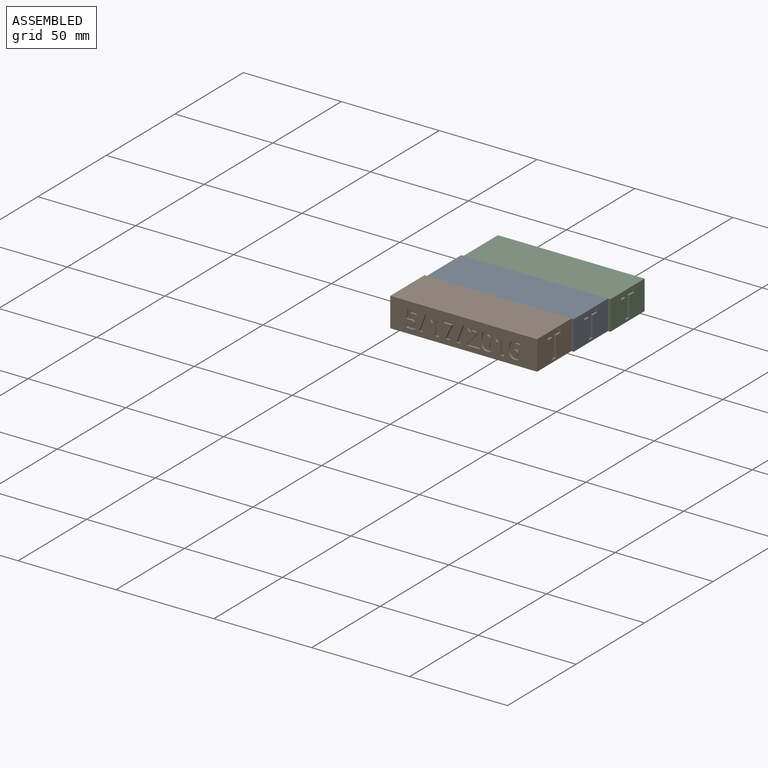
[diagram: assembled view]
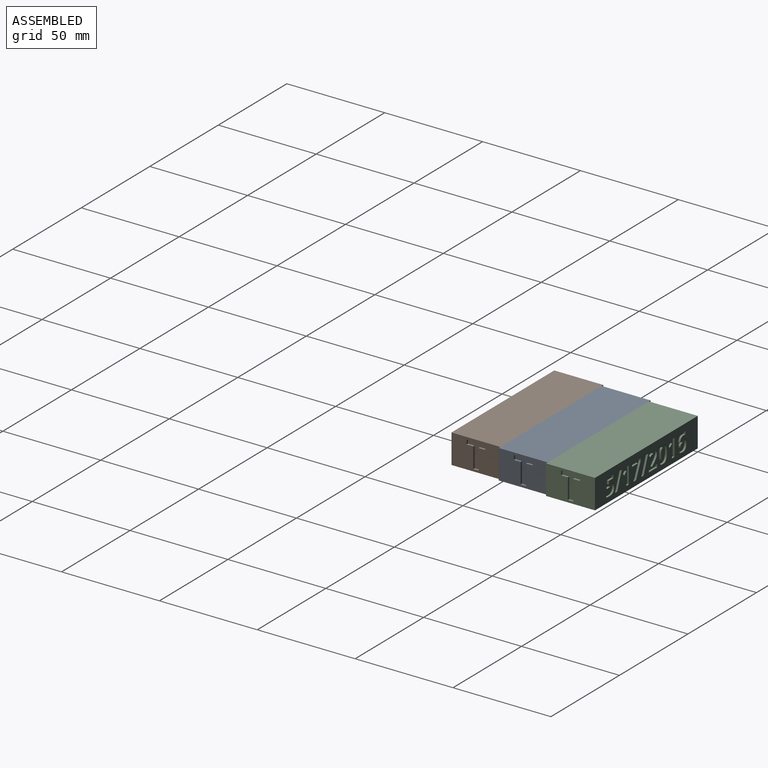
[diagram: assembled view, second angle]
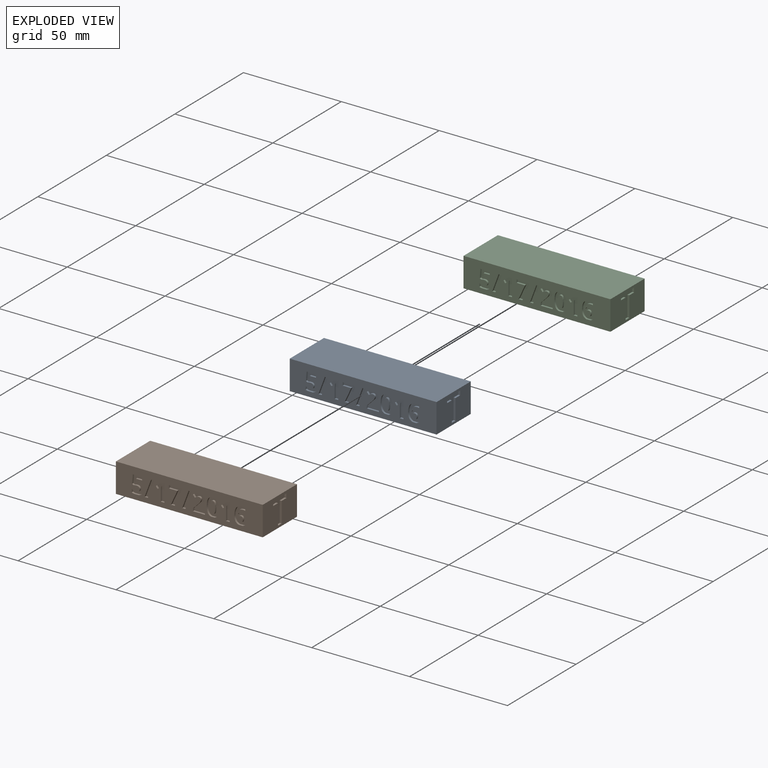
[diagram: exploded view]
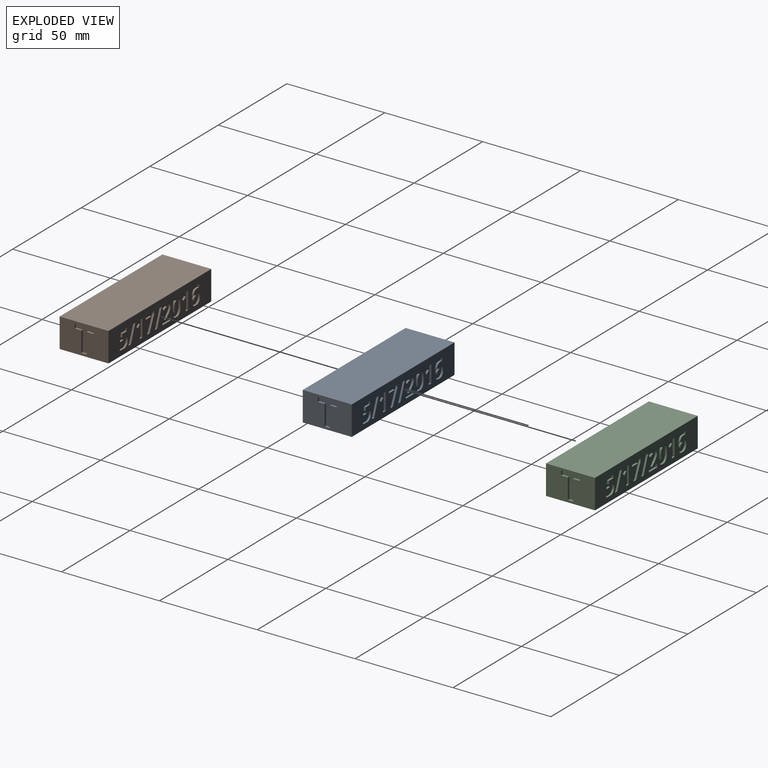
[diagram: exploded view, second angle]
ASSEMBLY  parts=3 mates=2
PART A: 309 faces, bbox 75x25x15 mm
  f0: plane 25x15mm, normal (-1,0,0), area 264.5mm2, adj f1,f2,f4,f5,f280,f281,f282,f283
  f1: plane 75x15mm, normal (0,-1,0), area 886.6mm2, adj f0,f3,f4,f5,f143,f144,f145,f146
  f2: plane 75x15mm, normal (0,1,0), area 886.6mm2, adj f0,f3,f4,f5,f6,f7,f8,f9
  f3: plane 25x15mm, normal (1,0,0), area 325.7mm2, adj f1,f2,f4,f5,f300,f301,f302,f303
  f4: plane 75x25mm, normal (0,0,1), area 1875mm2, adj f0,f1,f2,f3
  f5: plane 75x25mm, normal (0,0,-1), area 1875mm2, adj f0,f1,f2,f3
  f6: plane 5.11x1mm, normal (-1,0,0), area 5.1mm2, adj f2,f7,f15,f16
  f7: plane 1.87x1mm, normal (0,0,1), area 1.9mm2, adj f2,f6,f8,f16
  f8: plane 8.82x1mm, normal (1,0,0), area 8.8mm2, adj f2,f7,f9,f16
  f9: plane 1.53x1mm, normal (0,0,-1), area 1.5mm2, adj f2,f8,f10,f16
  f10: plane 2.84x2.26mm, normal (-0.62,0,-0.78), area 3.6mm2, adj f2,f9,f11,f16
  f11: plane 1.12x1mm, normal (-0.78,0,0.63), area 1.4mm2, adj f2,f10,f12,f16
  f12: plane 1.01x1mm, normal (0.63,0,0.78), area 1.3mm2, adj f2,f11,f13,f16
  f13: extruded ~1x0.65mm, area 0.9mm2, adj f2,f12,f14,f16
  f14: plane 1x0.92mm, normal (-1,0,-0.03), area 0.9mm2, adj f2,f13,f15,f16
  f15: plane 1x0.84mm, normal (-1,0,-0.02), area 0.8mm2, adj f2,f6,f14,f16
  f16: plane 8.82x4.38mm, normal (0,1,0), area 20.1mm2, adj f6,f7,f8,f9,f10,f11,f12,f13
  f17: plane 1.73x1mm, normal (1,0,0.09), area 1.7mm2, adj f2,f18,f37,f38
  f18: plane 3.15x1mm, normal (0,0,1), area 3.1mm2, adj f2,f17,f19,f38
  f19: plane 1.58x1mm, normal (1,0,0), area 1.6mm2, adj f2,f18,f20,f38
  f20: plane 4.79x1mm, normal (0,0,-1), area 4.8mm2, adj f2,f19,f21,f38
  f21: plane 4.5x1mm, normal (-1,0,-0.07), area 4.5mm2, adj f2,f20,f22,f38
  f22: plane 1x0.74mm, normal (-0.47,0,0.88), area 0.8mm2, adj f2,f21,f23,f38
  f23: extruded ~1x0.63mm, area 0.6mm2, adj f2,f22,f24,f38
  f24: extruded ~1x0.71mm, area 0.7mm2, adj f2,f23,f25,f38
  f25: extruded ~1.77x1.33mm, area 2.5mm2, adj f2,f24,f26,f38
  f26: extruded ~1.71x1.4mm, area 2.5mm2, adj f2,f25,f27,f38
  f27: extruded ~1.2x1mm, area 1.2mm2, adj f2,f26,f28,f38
  f28: extruded ~1.11x1mm, area 1.2mm2, adj f2,f27,f29,f38
  f29: plane 1.61x1mm, normal (-1,0,0), area 1.6mm2, adj f2,f28,f30,f38
  f30: extruded ~1.03x1mm, area 1.1mm2, adj f2,f29,f31,f38
  f31: plane 2.55x1mm, normal (0,0,1), area 2.5mm2, adj f2,f30,f32,f38
  f32: extruded ~1.4x1mm, area 1.6mm2, adj f2,f31,f33,f38
  f33: extruded ~2.27x1mm, area 2.5mm2, adj f2,f32,f34,f38
  f34: extruded ~1.97x1mm, area 2.2mm2, adj f2,f33,f35,f38
  f35: extruded ~2.04x1mm, area 2.2mm2, adj f2,f34,f36,f38
  f36: extruded ~1x0.91mm, area 0.9mm2, adj f2,f35,f37,f38
  f37: plane 1x0.21mm, normal (-0.2,0,-0.98), area 0.2mm2, adj f2,f17,f36,f38
  f38: plane 8.86x5.9mm, normal (0,1,0), area 30.5mm2, adj f17,f18,f19,f20,f21,f22,f23,f24
  f39: plane 8.82x3.29mm, normal (-0.94,0,-0.35), area 9.4mm2, adj f2,f40,f42,f43
  f40: plane 1.67x1mm, normal (0,0,1), area 1.7mm2, adj f2,f39,f41,f43
  f41: plane 8.82x3.29mm, normal (0.94,0,0.35), area 9.4mm2, adj f2,f40,f42,f43
  f42: plane 1.67x1mm, normal (0,0,-1), area 1.7mm2, adj f2,f39,f41,f43
  f43: plane 8.82x4.96mm, normal (0,1,0), area 14.7mm2, adj f39,f40,f41,f42
  f44: plane 1.96x1mm, normal (0,0,1), area 2mm2, adj f2,f45,f50,f51
  f45: plane 7.64x3.34mm, normal (0.92,0,0.4), area 8.3mm2, adj f2,f44,f46,f51
  f46: plane 1.17x1mm, normal (1,0,0), area 1.2mm2, adj f2,f45,f47,f51
  f47: plane 6.33x1mm, normal (0,0,-1), area 6.3mm2, adj f2,f46,f48,f51
  f48: plane 1.57x1mm, normal (-1,0,0), area 1.6mm2, adj f2,f47,f49,f51
  f49: plane 4.35x1mm, normal (0,0,1), area 4.4mm2, adj f2,f48,f50,f51
  f50: plane 7.24x3.31mm, normal (-0.91,0,-0.42), area 8mm2, adj f2,f44,f49,f51
  f51: plane 8.81x6.33mm, normal (0,1,0), area 23.5mm2, adj f44,f45,f46,f47,f48,f49,f50
  f52: plane 8.82x3.29mm, normal (-0.94,0,-0.35), area 9.4mm2, adj f2,f53,f55,f56
  f53: plane 1.67x1mm, normal (0,0,1), area 1.7mm2, adj f2,f52,f54,f56
  f54: plane 8.82x3.29mm, normal (0.94,0,0.35), area 9.4mm2, adj f2,f53,f55,f56
  f55: plane 1.67x1mm, normal (0,0,-1), area 1.7mm2, adj f2,f52,f54,f56
  f56: plane 8.82x4.96mm, normal (0,1,0), area 14.7mm2, adj f52,f53,f54,f55
  f57: plane 1.3x1mm, normal (-1,0,0), area 1.3mm2, adj f2,f58,f81,f82
  f58: plane 6.17x1mm, normal (0,0,1), area 6.2mm2, adj f2,f57,f59,f82
  f59: plane 1.57x1mm, normal (1,0,0), area 1.6mm2, adj f2,f58,f60,f82
  f60: plane 3.84x1mm, normal (0,0,-1), area 3.8mm2, adj f2,f59,f61,f82
  f61: plane 1x0.08mm, normal (1,0,0), area 0.1mm2, adj f2,f60,f62,f82
  f62: plane 1.14x1.07mm, normal (0.69,0,0.73), area 1.6mm2, adj f2,f61,f63,f82
  f63: extruded ~1.6x1.58mm, area 2.3mm2, adj f2,f62,f64,f82
  f64: extruded ~1.1x1mm, area 1.3mm2, adj f2,f63,f65,f82
  f65: extruded ~1.14x1mm, area 1.2mm2, adj f2,f64,f66,f82
  f66: extruded ~1.24x1mm, area 1.3mm2, adj f2,f65,f67,f82
  f67: extruded ~1x0.98mm, area 1.3mm2, adj f2,f66,f68,f82
  f68: extruded ~1x0.82mm, area 0.9mm2, adj f2,f67,f69,f82
  f69: plane 1.39x1mm, normal (0,0,-1), area 1.4mm2, adj f2,f68,f70,f82
  f70: extruded ~1x0.38mm, area 0.4mm2, adj f2,f69,f71,f82
  f71: extruded ~1x0.94mm, area 1mm2, adj f2,f70,f72,f82
  f72: extruded ~1.08x1mm, area 1.3mm2, adj f2,f71,f73,f82
  f73: plane 1.2x1.01mm, normal (-0.76,0,0.65), area 1.6mm2, adj f2,f72,f74,f82
  f74: extruded ~1.01x1mm, area 1.2mm2, adj f2,f73,f75,f82
  f75: extruded ~1x0.99mm, area 1mm2, adj f2,f74,f76,f82
  f76: extruded ~1x0.78mm, area 0.8mm2, adj f2,f75,f77,f82
  f77: extruded ~1x0.79mm, area 0.9mm2, adj f2,f76,f78,f82
  f78: extruded ~1x0.69mm, area 0.7mm2, adj f2,f77,f79,f82
  f79: extruded ~1x0.72mm, area 0.8mm2, adj f2,f78,f80,f82
  f80: extruded ~1.4x1.29mm, area 1.9mm2, adj f2,f79,f81,f82
  f81: plane 2.24x2.22mm, normal (-0.71,0,-0.7), area 3.1mm2, adj f2,f57,f80,f82
  f82: plane 8.91x6.19mm, normal (0,1,0), area 28.9mm2, adj f57,f58,f59,f60,f61,f62,f63,f64
  f83: extruded ~1.62x1.04mm, area 2mm2, adj f2,f84,f100,f101
  f84: extruded ~3.44x1mm, area 3.6mm2, adj f2,f83,f85,f101
  f85: extruded ~3.39x1mm, area 3.5mm2, adj f2,f84,f86,f101
  f86: extruded ~1.39x1.03mm, area 1.8mm2, adj f2,f85,f87,f101
  f87: plane 1.87x1mm, normal (0,0,1), area 1.9mm2, adj f2,f86,f88,f101
  f88: extruded ~1.38x1mm, area 1.7mm2, adj f2,f87,f89,f101
  f89: extruded ~3.42x1mm, area 3.6mm2, adj f2,f88,f90,f101
  f90: extruded ~3.39x1mm, area 3.5mm2, adj f2,f89,f91,f101
  f91: extruded ~1.63x1.1mm, area 2mm2, adj f2,f90,f100,f101
  f92: extruded ~2.33x1mm, area 2.4mm2, adj f93,f99,f101,f102
  f93: extruded ~1x0.94mm, area 1.3mm2, adj f92,f94,f101,f102
  f94: extruded ~1x0.94mm, area 1.3mm2, adj f93,f95,f101,f102
  f95: extruded ~2.33x1mm, area 2.4mm2, adj f94,f96,f101,f102
  f96: extruded ~2.32x1mm, area 2.3mm2, adj f95,f97,f101,f102
  f97: extruded ~1x0.94mm, area 1.3mm2, adj f96,f98,f101,f102
  f98: extruded ~1x0.94mm, area 1.3mm2, adj f97,f99,f101,f102
  f99: extruded ~2.33x1mm, area 2.4mm2, adj f92,f98,f101,f102
  f100: plane 1.38x1mm, normal (0,0,-1), area 1.4mm2, adj f2,f83,f91,f101
  f101: plane 9.02x6.17mm, normal (0,1,0), area 33.9mm2, adj f83,f84,f85,f86,f87,f88,f89,f90
  f102: plane 6.07x2.46mm, normal (0,1,0), area 12.7mm2, adj f92,f93,f94,f95,f96,f97,f98,f99
  f103: plane 8.82x1mm, normal (1,0,0), area 8.8mm2, adj f2,f104,f112,f113
  f104: plane 1.53x1mm, normal (0,0,-1), area 1.5mm2, adj f2,f103,f105,f113
  f105: plane 2.84x2.26mm, normal (-0.62,0,-0.78), area 3.6mm2, adj f2,f104,f106,f113
  f106: plane 1.12x1mm, normal (-0.78,0,0.63), area 1.4mm2, adj f2,f105,f107,f113
  f107: plane 1.01x1mm, normal (0.63,0,0.78), area 1.3mm2, adj f2,f106,f108,f113
  f108: extruded ~1x0.65mm, area 0.9mm2, adj f2,f107,f109,f113
  f109: plane 1x0.92mm, normal (-1,0,-0.03), area 0.9mm2, adj f2,f108,f110,f113
  f110: plane 1x0.84mm, normal (-1,0,-0.02), area 0.8mm2, adj f2,f109,f111,f113
  f111: plane 5.11x1mm, normal (-1,0,0), area 5.1mm2, adj f2,f110,f112,f113
  f112: plane 1.87x1mm, normal (0,0,1), area 1.9mm2, adj f2,f103,f111,f113
  f113: plane 8.82x4.38mm, normal (0,1,0), area 20.1mm2, adj f103,f104,f105,f106,f107,f108,f109,f110
  f114: extruded ~1.85x1mm, area 2.1mm2, adj f2,f115,f140,f141
  f115: extruded ~1.91x1.03mm, area 2.3mm2, adj f2,f114,f116,f141
  f116: plane 1x0.08mm, normal (0,0,-1), area 0.1mm2, adj f2,f115,f117,f141
  f117: extruded ~1.61x1mm, area 1.7mm2, adj f2,f116,f118,f141
  f118: extruded ~1x0.91mm, area 1.3mm2, adj f2,f117,f119,f141
  f119: extruded ~1.57x1mm, area 1.6mm2, adj f2,f118,f120,f141
  f120: extruded ~1.06x1mm, area 1.1mm2, adj f2,f119,f121,f141
  f121: plane 1.49x1mm, normal (1,0,0), area 1.5mm2, adj f2,f120,f122,f141
  f122: extruded ~1x0.46mm, area 0.5mm2, adj f2,f121,f123,f141
  f123: plane 1.34x1mm, normal (0,0,-1), area 1.3mm2, adj f2,f122,f124,f141
  f124: extruded ~2.7x1.25mm, area 3.1mm2, adj f2,f123,f125,f141
  f125: extruded ~3.9x1.11mm, area 4.1mm2, adj f2,f124,f126,f141
  f126: extruded ~2.1x1mm, area 2.1mm2, adj f2,f125,f127,f141
  f127: extruded ~1.32x1.12mm, area 1.8mm2, adj f2,f126,f128,f141
  f128: extruded ~1x0.76mm, area 0.8mm2, adj f2,f127,f129,f141
  f129: plane 1.94x1mm, normal (0,0,1), area 1.9mm2, adj f2,f128,f130,f141
  f130: extruded ~1.21x1mm, area 1.4mm2, adj f2,f129,f131,f141
  f131: extruded ~2.24x1mm, area 2.4mm2, adj f2,f130,f140,f141
  f132: extruded ~1x0.96mm, area 1.1mm2, adj f133,f139,f141,f142
  f133: extruded ~1.21x1mm, area 1.3mm2, adj f132,f134,f141,f142
  f134: extruded ~1x0.86mm, area 1mm2, adj f133,f135,f141,f142
  f135: extruded ~1x0.97mm, area 1.1mm2, adj f134,f136,f141,f142
  f136: extruded ~1x0.9mm, area 1mm2, adj f135,f137,f141,f142
  f137: extruded ~1.02x1mm, area 1.1mm2, adj f136,f138,f141,f142
  f138: extruded ~1.14x1mm, area 1.2mm2, adj f137,f139,f141,f142
  f139: extruded ~1x0.92mm, area 1mm2, adj f132,f138,f141,f142
  f140: extruded ~2.05x1mm, area 2.2mm2, adj f2,f114,f131,f141
  f141: plane 8.96x6.23mm, normal (0,1,0), area 33mm2, adj f114,f115,f116,f117,f118,f119,f120,f121
  f142: plane 2.93x2.57mm, normal (0,1,0), area 6.1mm2, adj f132,f133,f134,f135,f136,f137,f138,f139
  f143: extruded ~1x0.76mm, area 0.8mm2, adj f1,f144,f169,f170
  f144: plane 1.94x1mm, normal (0,0,1), area 1.9mm2, adj f1,f143,f145,f170
  f145: extruded ~1.21x1mm, area 1.4mm2, adj f1,f144,f146,f170
  f146: extruded ~2.24x1mm, area 2.4mm2, adj f1,f145,f147,f170
  f147: extruded ~2.05x1mm, area 2.2mm2, adj f1,f146,f148,f170
  f148: extruded ~1.85x1mm, area 2.1mm2, adj f1,f147,f149,f170
  f149: extruded ~1.91x1.03mm, area 2.3mm2, adj f1,f148,f150,f170
  f150: plane 1x0.08mm, normal (0,0,-1), area 0.1mm2, adj f1,f149,f151,f170
  f151: extruded ~1.61x1mm, area 1.7mm2, adj f1,f150,f152,f170
  f152: extruded ~1x0.91mm, area 1.3mm2, adj f1,f151,f153,f170
  f153: extruded ~1.57x1mm, area 1.6mm2, adj f1,f152,f154,f170
  f154: extruded ~1.06x1mm, area 1.1mm2, adj f1,f153,f155,f170
  f155: plane 1.49x1mm, normal (-1,0,0), area 1.5mm2, adj f1,f154,f156,f170
  f156: extruded ~1x0.46mm, area 0.5mm2, adj f1,f155,f157,f170
  f157: plane 1.34x1mm, normal (0,0,-1), area 1.3mm2, adj f1,f156,f158,f170
  f158: extruded ~2.7x1.25mm, area 3.1mm2, adj f1,f157,f159,f170
  f159: extruded ~3.9x1.11mm, area 4.1mm2, adj f1,f158,f160,f170
  f160: extruded ~2.1x1mm, area 2.1mm2, adj f1,f159,f169,f170
  f161: extruded ~1x0.96mm, area 1.1mm2, adj f162,f168,f170,f171
  f162: extruded ~1.21x1mm, area 1.3mm2, adj f161,f163,f170,f171
  f163: extruded ~1x0.86mm, area 1mm2, adj f162,f164,f170,f171
  f164: extruded ~1x0.97mm, area 1.1mm2, adj f163,f165,f170,f171
  f165: extruded ~1x0.9mm, area 1mm2, adj f164,f166,f170,f171
  f166: extruded ~1.02x1mm, area 1.1mm2, adj f165,f167,f170,f171
  f167: extruded ~1.14x1mm, area 1.2mm2, adj f166,f168,f170,f171
  f168: extruded ~1x0.92mm, area 1mm2, adj f161,f167,f170,f171
  f169: extruded ~1.32x1.12mm, area 1.8mm2, adj f1,f143,f160,f170
  f170: plane 8.96x6.23mm, normal (0,-1,0), area 33mm2, adj f143,f144,f145,f146,f147,f148,f149,f150
  f171: plane 2.93x2.57mm, normal (0,-1,0), area 6.1mm2, adj f161,f162,f163,f164,f165,f166,f167,f168
  f172: plane 8.82x1mm, normal (-1,0,0), area 8.8mm2, adj f1,f173,f181,f182
  f173: plane 1.53x1mm, normal (0,0,-1), area 1.5mm2, adj f1,f172,f174,f182
  f174: plane 2.84x2.26mm, normal (0.62,0,-0.78), area 3.6mm2, adj f1,f173,f175,f182
  f175: plane 1.12x1mm, normal (0.78,0,0.63), area 1.4mm2, adj f1,f174,f176,f182
  f176: plane 1.01x1mm, normal (-0.63,0,0.78), area 1.3mm2, adj f1,f175,f177,f182
  f177: extruded ~1x0.65mm, area 0.9mm2, adj f1,f176,f178,f182
  f178: plane 1x0.92mm, normal (1,0,-0.03), area 0.9mm2, adj f1,f177,f179,f182
  f179: plane 1x0.84mm, normal (1,0,-0.02), area 0.8mm2, adj f1,f178,f180,f182
  f180: plane 5.11x1mm, normal (1,0,0), area 5.1mm2, adj f1,f179,f181,f182
  f181: plane 1.87x1mm, normal (0,0,1), area 1.9mm2, adj f1,f172,f180,f182
  f182: plane 8.82x4.38mm, normal (0,-1,0), area 20.1mm2, adj f172,f173,f174,f175,f176,f177,f178,f179
  f183: extruded ~1.62x1.04mm, area 2mm2, adj f1,f184,f200,f201
  f184: extruded ~3.44x1mm, area 3.6mm2, adj f1,f183,f185,f201
  f185: extruded ~3.39x1mm, area 3.5mm2, adj f1,f184,f186,f201
  f186: extruded ~1.39x1.03mm, area 1.8mm2, adj f1,f185,f187,f201
  f187: plane 1.87x1mm, normal (0,0,1), area 1.9mm2, adj f1,f186,f188,f201
  f188: extruded ~1.38x1mm, area 1.7mm2, adj f1,f187,f189,f201
  f189: extruded ~3.42x1mm, area 3.6mm2, adj f1,f188,f190,f201
  f190: extruded ~3.39x1mm, area 3.5mm2, adj f1,f189,f191,f201
  f191: extruded ~1.63x1.1mm, area 2mm2, adj f1,f190,f200,f201
  f192: extruded ~2.33x1mm, area 2.4mm2, adj f193,f199,f201,f202
  f193: extruded ~1x0.94mm, area 1.3mm2, adj f192,f194,f201,f202
  f194: extruded ~1x0.94mm, area 1.3mm2, adj f193,f195,f201,f202
  f195: extruded ~2.33x1mm, area 2.4mm2, adj f194,f196,f201,f202
  f196: extruded ~2.32x1mm, area 2.3mm2, adj f195,f197,f201,f202
  f197: extruded ~1x0.94mm, area 1.3mm2, adj f196,f198,f201,f202
  f198: extruded ~1x0.94mm, area 1.3mm2, adj f197,f199,f201,f202
  f199: extruded ~2.33x1mm, area 2.4mm2, adj f192,f198,f201,f202
  f200: plane 1.38x1mm, normal (0,0,-1), area 1.4mm2, adj f1,f183,f191,f201
  f201: plane 9.02x6.17mm, normal (0,-1,0), area 33.9mm2, adj f183,f184,f185,f186,f187,f188,f189,f190
  f202: plane 6.07x2.46mm, normal (0,-1,0), area 12.7mm2, adj f192,f193,f194,f195,f196,f197,f198,f199
  f203: plane 1.57x1mm, normal (-1,0,0), area 1.6mm2, adj f1,f204,f227,f228
  f204: plane 3.84x1mm, normal (0,0,-1), area 3.8mm2, adj f1,f203,f205,f228
  f205: plane 1x0.08mm, normal (-1,0,0), area 0.1mm2, adj f1,f204,f206,f228
  f206: plane 1.14x1.07mm, normal (-0.69,0,0.73), area 1.6mm2, adj f1,f205,f207,f228
  f207: extruded ~1.6x1.58mm, area 2.3mm2, adj f1,f206,f208,f228
  f208: extruded ~1.1x1mm, area 1.3mm2, adj f1,f207,f209,f228
  f209: extruded ~1.14x1mm, area 1.2mm2, adj f1,f208,f210,f228
  f210: extruded ~1.24x1mm, area 1.3mm2, adj f1,f209,f211,f228
  f211: extruded ~1x0.98mm, area 1.3mm2, adj f1,f210,f212,f228
  f212: extruded ~1x0.82mm, area 0.9mm2, adj f1,f211,f213,f228
  f213: plane 1.39x1mm, normal (0,0,-1), area 1.4mm2, adj f1,f212,f214,f228
  f214: extruded ~1x0.38mm, area 0.4mm2, adj f1,f213,f215,f228
  f215: extruded ~1x0.94mm, area 1mm2, adj f1,f214,f216,f228
  f216: extruded ~1.08x1mm, area 1.3mm2, adj f1,f215,f217,f228
  f217: plane 1.2x1.01mm, normal (0.76,0,0.65), area 1.6mm2, adj f1,f216,f218,f228
  f218: extruded ~1.01x1mm, area 1.2mm2, adj f1,f217,f219,f228
  f219: extruded ~1x0.99mm, area 1mm2, adj f1,f218,f220,f228
  f220: extruded ~1x0.78mm, area 0.8mm2, adj f1,f219,f221,f228
  f221: extruded ~1x0.79mm, area 0.9mm2, adj f1,f220,f222,f228
  f222: extruded ~1x0.69mm, area 0.7mm2, adj f1,f221,f223,f228
  f223: extruded ~1x0.72mm, area 0.8mm2, adj f1,f222,f224,f228
  f224: extruded ~1.4x1.29mm, area 1.9mm2, adj f1,f223,f225,f228
  f225: plane 2.24x2.22mm, normal (0.71,0,-0.7), area 3.1mm2, adj f1,f224,f226,f228
  f226: plane 1.3x1mm, normal (1,0,0), area 1.3mm2, adj f1,f225,f227,f228
  f227: plane 6.17x1mm, normal (0,0,1), area 6.2mm2, adj f1,f203,f226,f228
  f228: plane 8.91x6.19mm, normal (0,-1,0), area 28.9mm2, adj f203,f204,f205,f206,f207,f208,f209,f210
  f229: plane 1.67x1mm, normal (0,0,1), area 1.7mm2, adj f1,f230,f232,f233
  f230: plane 8.82x3.29mm, normal (-0.94,0,0.35), area 9.4mm2, adj f1,f229,f231,f233
  f231: plane 1.67x1mm, normal (0,0,-1), area 1.7mm2, adj f1,f230,f232,f233
  f232: plane 8.82x3.29mm, normal (0.94,0,-0.35), area 9.4mm2, adj f1,f229,f231,f233
  f233: plane 8.82x4.96mm, normal (0,-1,0), area 14.7mm2, adj f229,f230,f231,f232
  f234: plane 1.96x1mm, normal (0,0,1), area 2mm2, adj f1,f235,f240,f241
  f235: plane 7.64x3.34mm, normal (-0.92,0,0.4), area 8.3mm2, adj f1,f234,f236,f241
  f236: plane 1.17x1mm, normal (-1,0,0), area 1.2mm2, adj f1,f235,f237,f241
  f237: plane 6.33x1mm, normal (0,0,-1), area 6.3mm2, adj f1,f236,f238,f241
  f238: plane 1.57x1mm, normal (1,0,0), area 1.6mm2, adj f1,f237,f239,f241
  f239: plane 4.35x1mm, normal (0,0,1), area 4.4mm2, adj f1,f238,f240,f241
  f240: plane 7.24x3.31mm, normal (0.91,0,-0.42), area 8mm2, adj f1,f234,f239,f241
  f241: plane 8.81x6.33mm, normal (0,-1,0), area 23.5mm2, adj f234,f235,f236,f237,f238,f239,f240
  f242: plane 5.11x1mm, normal (1,0,0), area 5.1mm2, adj f1,f243,f251,f252
  f243: plane 1.87x1mm, normal (0,0,1), area 1.9mm2, adj f1,f242,f244,f252
  f244: plane 8.82x1mm, normal (-1,0,0), area 8.8mm2, adj f1,f243,f245,f252
  f245: plane 1.53x1mm, normal (0,0,-1), area 1.5mm2, adj f1,f244,f246,f252
  f246: plane 2.84x2.26mm, normal (0.62,0,-0.78), area 3.6mm2, adj f1,f245,f247,f252
  f247: plane 1.12x1mm, normal (0.78,0,0.63), area 1.4mm2, adj f1,f246,f248,f252
  f248: plane 1.01x1mm, normal (-0.63,0,0.78), area 1.3mm2, adj f1,f247,f249,f252
  f249: extruded ~1x0.65mm, area 0.9mm2, adj f1,f248,f250,f252
  f250: plane 1x0.92mm, normal (1,0,-0.03), area 0.9mm2, adj f1,f249,f251,f252
  f251: plane 1x0.84mm, normal (1,0,-0.02), area 0.8mm2, adj f1,f242,f250,f252
  f252: plane 8.82x4.38mm, normal (0,-1,0), area 20.1mm2, adj f242,f243,f244,f245,f246,f247,f248,f249
  f253: plane 8.82x3.29mm, normal (0.94,0,-0.35), area 9.4mm2, adj f1,f254,f256,f257
  f254: plane 1.67x1mm, normal (0,0,1), area 1.7mm2, adj f1,f253,f255,f257
  f255: plane 8.82x3.29mm, normal (-0.94,0,0.35), area 9.4mm2, adj f1,f254,f256,f257
  f256: plane 1.67x1mm, normal (0,0,-1), area 1.7mm2, adj f1,f253,f255,f257
  f257: plane 8.82x4.96mm, normal (0,-1,0), area 14.7mm2, adj f253,f254,f255,f256
  f258: extruded ~1.03x1mm, area 1.1mm2, adj f1,f259,f278,f279
  f259: plane 2.55x1mm, normal (0,0,1), area 2.5mm2, adj f1,f258,f260,f279
  f260: extruded ~1.4x1mm, area 1.6mm2, adj f1,f259,f261,f279
  f261: extruded ~2.27x1mm, area 2.5mm2, adj f1,f260,f262,f279
  f262: extruded ~1.97x1mm, area 2.2mm2, adj f1,f261,f263,f279
  f263: extruded ~2.04x1mm, area 2.2mm2, adj f1,f262,f264,f279
  f264: extruded ~1x0.91mm, area 0.9mm2, adj f1,f263,f265,f279
  f265: plane 1x0.21mm, normal (0.2,0,-0.98), area 0.2mm2, adj f1,f264,f266,f279
  f266: plane 1.73x1mm, normal (-1,0,0.09), area 1.7mm2, adj f1,f265,f267,f279
  f267: plane 3.15x1mm, normal (0,0,1), area 3.1mm2, adj f1,f266,f268,f279
  f268: plane 1.58x1mm, normal (-1,0,0), area 1.6mm2, adj f1,f267,f269,f279
  f269: plane 4.79x1mm, normal (0,0,-1), area 4.8mm2, adj f1,f268,f270,f279
  f270: plane 4.5x1mm, normal (1,0,-0.07), area 4.5mm2, adj f1,f269,f271,f279
  f271: plane 1x0.74mm, normal (0.47,0,0.88), area 0.8mm2, adj f1,f270,f272,f279
  f272: extruded ~1x0.63mm, area 0.6mm2, adj f1,f271,f273,f279
  f273: extruded ~1x0.71mm, area 0.7mm2, adj f1,f272,f274,f279
  f274: extruded ~1.77x1.33mm, area 2.5mm2, adj f1,f273,f275,f279
  f275: extruded ~1.71x1.4mm, area 2.5mm2, adj f1,f274,f276,f279
  f276: extruded ~1.2x1mm, area 1.2mm2, adj f1,f275,f277,f279
  f277: extruded ~1.11x1mm, area 1.2mm2, adj f1,f276,f278,f279
  f278: plane 1.61x1mm, normal (1,0,0), area 1.6mm2, adj f1,f258,f277,f279
  f279: plane 8.86x5.9mm, normal (0,-1,0), area 30.5mm2, adj f258,f259,f260,f261,f262,f263,f264,f265
  f280: plane 2.46x1mm, normal (0,0,1), area 2.5mm2, adj f0,f281,f298,f299
  f281: plane 9.91x3.26mm, normal (0,0.95,0.31), area 10.4mm2, adj f0,f280,f282,f299
  f282: plane 1x0.08mm, normal (0,0,1), area 0.1mm2, adj f0,f281,f283,f299
  f283: extruded ~2.94x1mm, area 2.9mm2, adj f0,f282,f284,f299
  f284: extruded ~1x0.98mm, area 1mm2, adj f0,f283,f285,f299
  f285: plane 5.99x1mm, normal (0,-1,0), area 6mm2, adj f0,f284,f286,f299
  f286: plane 2.5x1mm, normal (0,0,1), area 2.5mm2, adj f0,f285,f287,f299
  f287: plane 12.66x1mm, normal (0,1,0), area 12.7mm2, adj f0,f286,f288,f299
  f288: plane 3.65x1mm, normal (0,0,-1), area 3.7mm2, adj f0,f287,f289,f299
  f289: plane 9.68x3.18mm, normal (0,-0.95,-0.31), area 10.2mm2, adj f0,f288,f290,f299
  f290: plane 1x0.05mm, normal (0,0,-1), area 0.1mm2, adj f0,f289,f291,f299
  f291: plane 9.68x3mm, normal (0,0.96,-0.3), area 10.1mm2, adj f0,f290,f292,f299
  f292: plane 3.65x1mm, normal (0,0,-1), area 3.7mm2, adj f0,f291,f293,f299
  f293: plane 12.66x1mm, normal (0,-1,0), area 12.7mm2, adj f0,f292,f294,f299
  f294: plane 2.4x1mm, normal (0,0,1), area 2.4mm2, adj f0,f293,f295,f299
  f295: plane 5.89x1mm, normal (0,1,0), area 5.9mm2, adj f0,f294,f296,f299
  f296: extruded ~4.04x1mm, area 4mm2, adj f0,f295,f297,f299
  f297: plane 1x0.08mm, normal (0,0,1), area 0.1mm2, adj f0,f296,f298,f299
  f298: plane 9.93x3.05mm, normal (0,-0.96,0.29), area 10.4mm2, adj f0,f280,f297,f299
  f299: plane 13.53x12.66mm, normal (-1,0,0), area 110.5mm2, adj f280,f281,f282,f283,f284,f285,f286,f287
  f300: plane 2.68x1mm, normal (0,0,1), area 2.7mm2, adj f3,f301,f307,f308
  f301: plane 10.43x1mm, normal (0,-1,0), area 10.4mm2, adj f3,f300,f302,f308
  f302: plane 3.44x1mm, normal (0,0,1), area 3.4mm2, adj f3,f301,f303,f308
  f303: plane 2.23x1mm, normal (0,-1,0), area 2.2mm2, adj f3,f302,f304,f308
  f304: plane 9.56x1mm, normal (0,0,-1), area 9.6mm2, adj f3,f303,f305,f308
  f305: plane 2.23x1mm, normal (0,1,0), area 2.2mm2, adj f3,f304,f306,f308
  f306: plane 3.44x1mm, normal (0,0,1), area 3.4mm2, adj f3,f305,f307,f308
  f307: plane 10.43x1mm, normal (0,1,0), area 10.4mm2, adj f3,f300,f306,f308
  f308: plane 12.66x9.56mm, normal (1,0,0), area 49.3mm2, adj f300,f301,f302,f303,f304,f305,f306,f307
PART B: same geometry as A
PART C: same geometry as A
PLACE A t=(-1.2,-25,0)mm
PLACE B t=(-2.41,-50,0)mm
PLACE C at identity
MATE fastened A.f1 <-> B.f2  axis (0,-1,0) through (35.69,-50,7.63)mm
MATE fastened A.f2 <-> C.f1  axis (0,1,0) through (36.9,-25,7.63)mm
